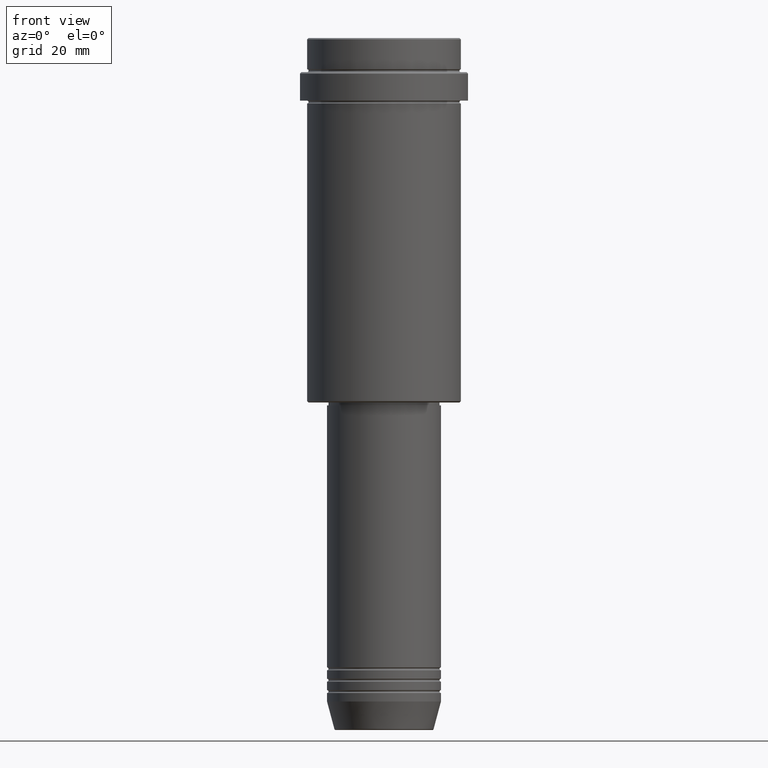
[diagram: clean part render]
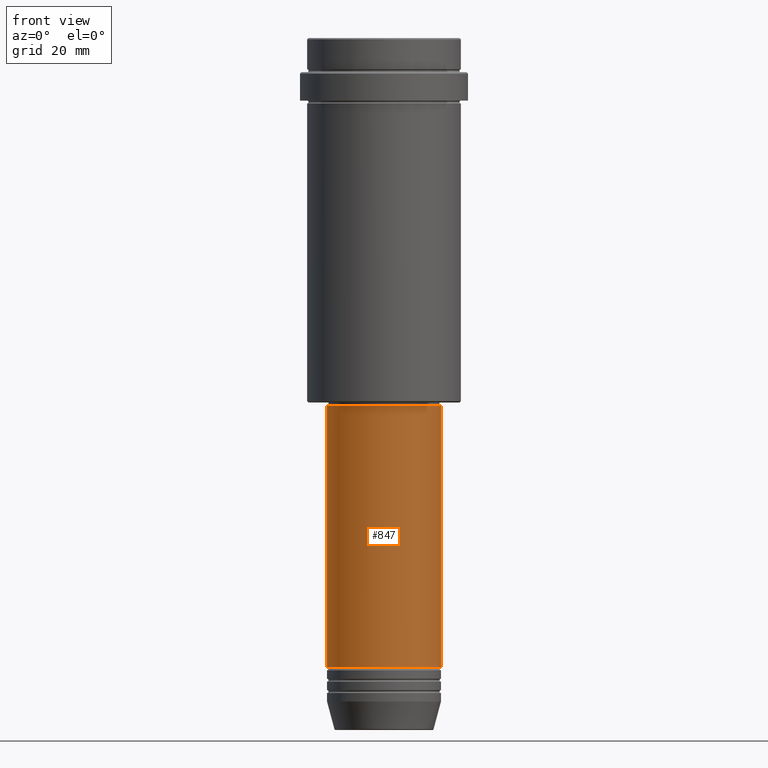
[diagram: same view with one face highlighted and labeled with its STEP entity id]
A machine part, front view. The second image highlights one B-rep face of the part: STEP entity #847.
In plain terms, the highlighted cylindrical surface (partial cylindrical patch) has radius 20 mm, axis along (-0, -0, 1).
Its self-contained STEP definition (entity closure, byte-faithful):
#24 = CARTESIAN_POINT ( 'NONE',  ( 0.000000000000000000, 0.000000000000000000, 0.000000000000000000 ) ) ;
#107 = ORIENTED_EDGE ( 'NONE', *, *, #365, .T. ) ;
#138 = EDGE_CURVE ( 'NONE', #825, #174, #1275, .T. ) ;
#174 = VERTEX_POINT ( 'NONE', #315 ) ;
#207 = DIRECTION ( 'NONE',  ( -0.000000000000000000, -0.000000000000000000, 1.000000000000000000 ) ) ;
#211 = DIRECTION ( 'NONE',  ( 1.000000000000000000, 0.000000000000000000, 0.000000000000000000 ) ) ;
#231 = DIRECTION ( 'NONE',  ( -0.000000000000000000, -0.000000000000000000, 1.000000000000000000 ) ) ;
#248 = DIRECTION ( 'NONE',  ( -0.000000000000000000, -0.000000000000000000, 1.000000000000000000 ) ) ;
#313 = EDGE_CURVE ( 'NONE', #1305, #1035, #981, .T. ) ;
#315 = CARTESIAN_POINT ( 'NONE',  ( 20.00000000000000000, 0.000000000000000000, -129.0000000000000000 ) ) ;
#365 = EDGE_CURVE ( 'NONE', #1035, #174, #772, .T. ) ;
#368 = EDGE_CURVE ( 'NONE', #1305, #825, #563, .T. ) ;
#370 = DIRECTION ( 'NONE',  ( -0.000000000000000000, -0.000000000000000000, 1.000000000000000000 ) ) ;
#448 = CARTESIAN_POINT ( 'NONE',  ( -20.00000000000000000, 2.449293598294706513E-15, -129.0000000000000000 ) ) ;
#487 = AXIS2_PLACEMENT_3D ( 'NONE', #24, #370, #1328 ) ;
#504 = AXIS2_PLACEMENT_3D ( 'NONE', #743, #953, #720 ) ;
#563 = LINE ( 'NONE', #1205, #887 ) ;
#647 = AXIS2_PLACEMENT_3D ( 'NONE', #1312, #207, #211 ) ;
#675 = ORIENTED_EDGE ( 'NONE', *, *, #313, .T. ) ;
#720 = DIRECTION ( 'NONE',  ( 1.000000000000000000, 0.000000000000000000, 0.000000000000000000 ) ) ;
#743 = CARTESIAN_POINT ( 'NONE',  ( 0.000000000000000000, 0.000000000000000000, -220.9999999999998863 ) ) ;
#764 = ORIENTED_EDGE ( 'NONE', *, *, #368, .F. ) ;
#772 = LINE ( 'NONE', #872, #1211 ) ;
#825 = VERTEX_POINT ( 'NONE', #448 ) ;
#847 = ADVANCED_FACE ( 'NONE', ( #1353 ), #1009, .T. ) ;
#872 = CARTESIAN_POINT ( 'NONE',  ( 20.00000000000000000, 0.000000000000000000, 0.000000000000000000 ) ) ;
#887 = VECTOR ( 'NONE', #231, 1000.000000000000000 ) ;
#953 = DIRECTION ( 'NONE',  ( -0.000000000000000000, -0.000000000000000000, 1.000000000000000000 ) ) ;
#981 = CIRCLE ( 'NONE', #504, 20.00000000000000000 ) ;
#1009 = CYLINDRICAL_SURFACE ( 'NONE', #487, 20.00000000000000000 ) ;
#1035 = VERTEX_POINT ( 'NONE', #1091 ) ;
#1039 = ORIENTED_EDGE ( 'NONE', *, *, #138, .F. ) ;
#1091 = CARTESIAN_POINT ( 'NONE',  ( 20.00000000000000000, 0.000000000000000000, -220.9999999999998863 ) ) ;
#1144 = CARTESIAN_POINT ( 'NONE',  ( -20.00000000000000000, 2.449293598294706513E-15, -220.9999999999998863 ) ) ;
#1205 = CARTESIAN_POINT ( 'NONE',  ( -20.00000000000000000, 2.449293598294706513E-15, 0.000000000000000000 ) ) ;
#1211 = VECTOR ( 'NONE', #248, 1000.000000000000000 ) ;
#1275 = CIRCLE ( 'NONE', #647, 20.00000000000000000 ) ;
#1301 = EDGE_LOOP ( 'NONE', ( #764, #675, #107, #1039 ) ) ;
#1305 = VERTEX_POINT ( 'NONE', #1144 ) ;
#1312 = CARTESIAN_POINT ( 'NONE',  ( 0.000000000000000000, 0.000000000000000000, -129.0000000000000000 ) ) ;
#1328 = DIRECTION ( 'NONE',  ( 1.000000000000000000, 0.000000000000000000, 0.000000000000000000 ) ) ;
#1353 = FACE_OUTER_BOUND ( 'NONE', #1301, .T. ) ;